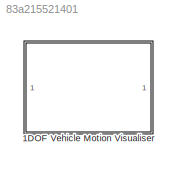
MODEL slx_83a215521401
KIND library
CONFIG AbsTol = auto
CONFIG EnableMultiTasking = off
CONFIG FixedStep = auto
CONFIG MaxStep = auto
CONFIG MinStep = auto
CONFIG RelTol = 1e-3
CONFIG SampleTimeConstraint = Unconstrained
CONFIG SolverName = VariableStepAuto
CONFIG StartTime = 0.0
CONFIG StopTime = 10.0
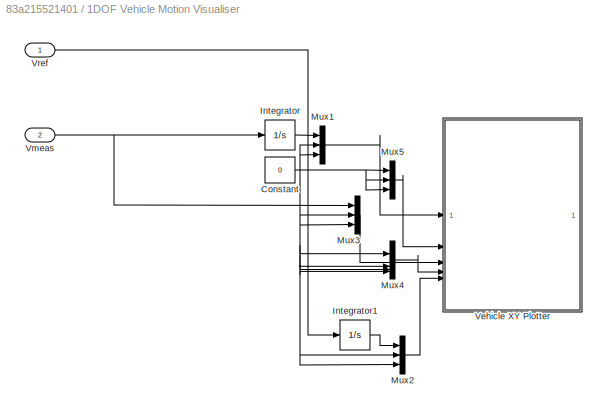
BLOCK [SubSystem] 1DOF Vehicle Motion Visualiser
BLOCK [Constant] 1DOF Vehicle Motion Visualiser/Constant
  Value = 0
BLOCK [Integrator] 1DOF Vehicle Motion Visualiser/Integrator
BLOCK [Integrator] 1DOF Vehicle Motion Visualiser/Integrator1
BLOCK [Mux] 1DOF Vehicle Motion Visualiser/Mux1
  DisplayOption = bar
  Inputs = 3
BLOCK [Mux] 1DOF Vehicle Motion Visualiser/Mux2
  DisplayOption = bar
  Inputs = 3
BLOCK [Mux] 1DOF Vehicle Motion Visualiser/Mux3
  DisplayOption = bar
  Inputs = 3
BLOCK [Mux] 1DOF Vehicle Motion Visualiser/Mux4
  DisplayOption = bar
BLOCK [Mux] 1DOF Vehicle Motion Visualiser/Mux5
  DisplayOption = bar
  Inputs = 3
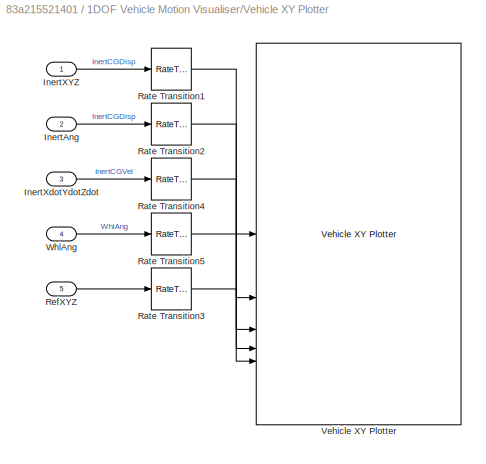
BLOCK [SubSystem] 1DOF Vehicle Motion Visualiser/Vehicle XY Plotter
BLOCK [Inport] 1DOF Vehicle Motion Visualiser/Vehicle XY Plotter/InertAng
  Port = 2
BLOCK [Inport] 1DOF Vehicle Motion Visualiser/Vehicle XY Plotter/InertXYZ
BLOCK [Inport] 1DOF Vehicle Motion Visualiser/Vehicle XY Plotter/InertXdotYdotZdot
  Port = 3
BLOCK [RateTransition] 1DOF Vehicle Motion Visualiser/Vehicle XY Plotter/Rate Transition1
  Deterministic = off
  OutPortSampleTime = pltDT
BLOCK [RateTransition] 1DOF Vehicle Motion Visualiser/Vehicle XY Plotter/Rate Transition2
  Deterministic = off
  OutPortSampleTime = pltDT
BLOCK [RateTransition] 1DOF Vehicle Motion Visualiser/Vehicle XY Plotter/Rate Transition3
  Deterministic = off
  OutPortSampleTime = pltDT
BLOCK [RateTransition] 1DOF Vehicle Motion Visualiser/Vehicle XY Plotter/Rate Transition4
  Deterministic = off
  OutPortSampleTime = pltDT
BLOCK [RateTransition] 1DOF Vehicle Motion Visualiser/Vehicle XY Plotter/Rate Transition5
  Deterministic = off
  OutPortSampleTime = pltDT
BLOCK [Inport] 1DOF Vehicle Motion Visualiser/Vehicle XY Plotter/RefXYZ
  Port = 5
BLOCK [Reference] 1DOF Vehicle Motion Visualiser/Vehicle XY Plotter/Vehicle XY Plotter  REF=vehdynlibviscommon/Vehicle XY Plotter
  SourceBlock = vehdynlibviscommon/Vehicle XY Plotter
  SourceType = Vehicle XY Plotter
BLOCK [Inport] 1DOF Vehicle Motion Visualiser/Vehicle XY Plotter/WhlAng
  Port = 4
BLOCK [Inport] 1DOF Vehicle Motion Visualiser/Vmeas
  Port = 2
BLOCK [Inport] 1DOF Vehicle Motion Visualiser/Vref
NET 1DOF Vehicle Motion Visualiser/Constant:1 -> 1DOF Vehicle Motion Visualiser/Mux1:2, 1DOF Vehicle Motion Visualiser/Mux1:3, 1DOF Vehicle Motion Visualiser/Mux2:2, 1DOF Vehicle Motion Visualiser/Mux2:3, 1DOF Vehicle Motion Visualiser/Mux3:2, 1DOF Vehicle Motion Visualiser/Mux3:3, 1DOF Vehicle Motion Visualiser/Mux4:1, 1DOF Vehicle Motion Visualiser/Mux4:2, 1DOF Vehicle Motion Visualiser/Mux4:3, 1DOF Vehicle Motion Visualiser/Mux4:4, 1DOF Vehicle Motion Visualiser/Mux5:1, 1DOF Vehicle Motion Visualiser/Mux5:2, 1DOF Vehicle Motion Visualiser/Mux5:3
LINE 1DOF Vehicle Motion Visualiser/Integrator1:1 -> 1DOF Vehicle Motion Visualiser/Mux2:1
LINE 1DOF Vehicle Motion Visualiser/Integrator:1 -> 1DOF Vehicle Motion Visualiser/Mux1:1
LINE 1DOF Vehicle Motion Visualiser/Mux1:1 -> 1DOF Vehicle Motion Visualiser/Vehicle XY Plotter:1
LINE 1DOF Vehicle Motion Visualiser/Mux2:1 -> 1DOF Vehicle Motion Visualiser/Vehicle XY Plotter:5
LINE 1DOF Vehicle Motion Visualiser/Mux3:1 -> 1DOF Vehicle Motion Visualiser/Vehicle XY Plotter:3
LINE 1DOF Vehicle Motion Visualiser/Mux4:1 -> 1DOF Vehicle Motion Visualiser/Vehicle XY Plotter:4
LINE 1DOF Vehicle Motion Visualiser/Mux5:1 -> 1DOF Vehicle Motion Visualiser/Vehicle XY Plotter:2
LINE 1DOF Vehicle Motion Visualiser/Vehicle XY Plotter/InertAng:1 -> 1DOF Vehicle Motion Visualiser/Vehicle XY Plotter/Rate Transition2:1
LINE 1DOF Vehicle Motion Visualiser/Vehicle XY Plotter/InertXYZ:1 -> 1DOF Vehicle Motion Visualiser/Vehicle XY Plotter/Rate Transition1:1
LINE 1DOF Vehicle Motion Visualiser/Vehicle XY Plotter/InertXdotYdotZdot:1 -> 1DOF Vehicle Motion Visualiser/Vehicle XY Plotter/Rate Transition4:1
LINE 1DOF Vehicle Motion Visualiser/Vehicle XY Plotter/Rate Transition1:1 -> 1DOF Vehicle Motion Visualiser/Vehicle XY Plotter/Vehicle XY Plotter:1
LINE 1DOF Vehicle Motion Visualiser/Vehicle XY Plotter/Rate Transition2:1 -> 1DOF Vehicle Motion Visualiser/Vehicle XY Plotter/Vehicle XY Plotter:2
LINE 1DOF Vehicle Motion Visualiser/Vehicle XY Plotter/Rate Transition3:1 -> 1DOF Vehicle Motion Visualiser/Vehicle XY Plotter/Vehicle XY Plotter:5
LINE 1DOF Vehicle Motion Visualiser/Vehicle XY Plotter/Rate Transition4:1 -> 1DOF Vehicle Motion Visualiser/Vehicle XY Plotter/Vehicle XY Plotter:3
LINE 1DOF Vehicle Motion Visualiser/Vehicle XY Plotter/Rate Transition5:1 -> 1DOF Vehicle Motion Visualiser/Vehicle XY Plotter/Vehicle XY Plotter:4
LINE 1DOF Vehicle Motion Visualiser/Vehicle XY Plotter/RefXYZ:1 -> 1DOF Vehicle Motion Visualiser/Vehicle XY Plotter/Rate Transition3:1
LINE 1DOF Vehicle Motion Visualiser/Vehicle XY Plotter/WhlAng:1 -> 1DOF Vehicle Motion Visualiser/Vehicle XY Plotter/Rate Transition5:1
NET 1DOF Vehicle Motion Visualiser/Vmeas:1 -> 1DOF Vehicle Motion Visualiser/Integrator:1, 1DOF Vehicle Motion Visualiser/Mux3:1
LINE 1DOF Vehicle Motion Visualiser/Vref:1 -> 1DOF Vehicle Motion Visualiser/Integrator1:1
note: NET lines group one-source signal fan-out (src -> all destinations, sorted); 1:1 wires keep LINE
